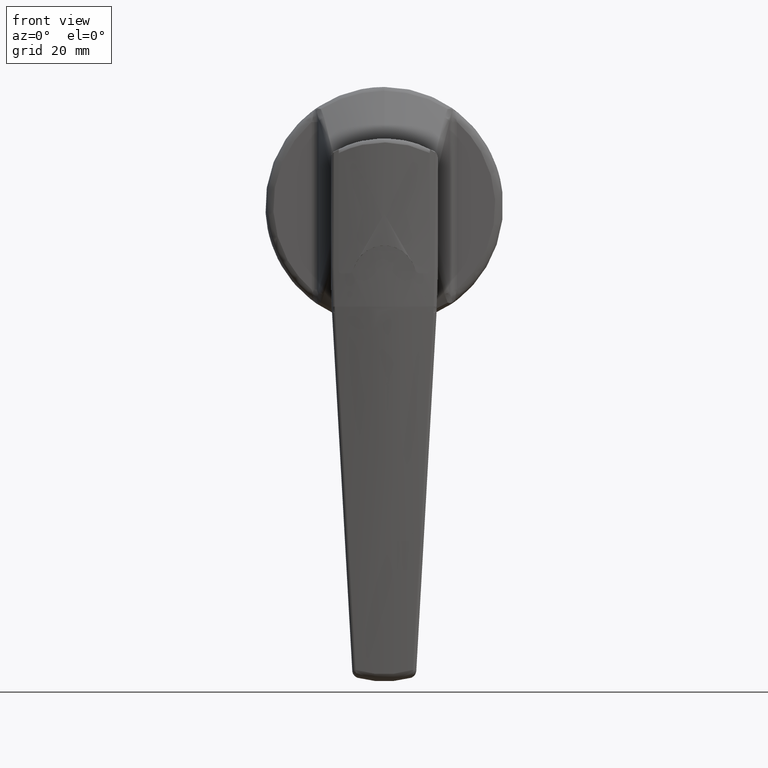
[diagram: clean part render]
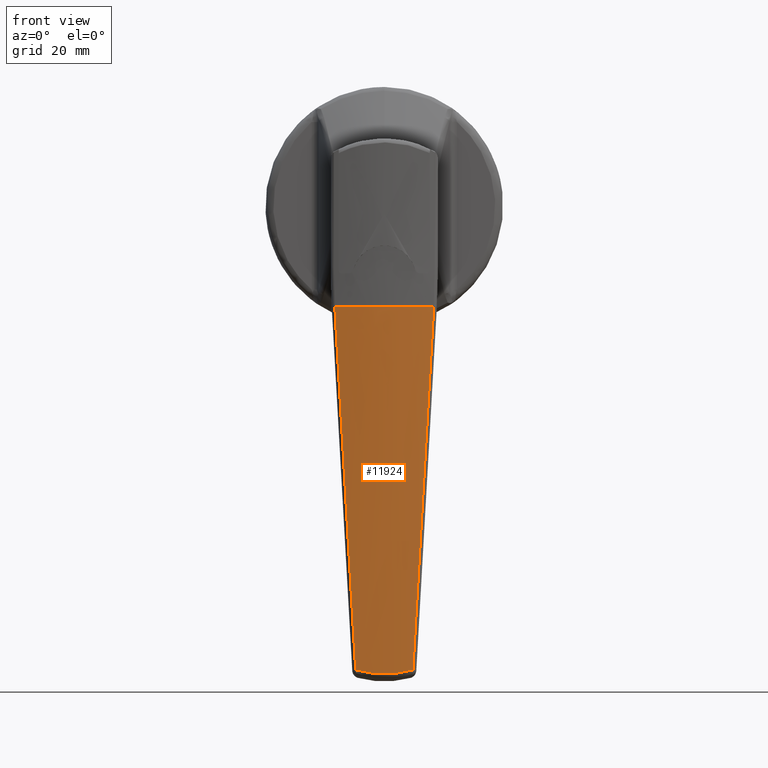
[diagram: same view with one face highlighted and labeled with its STEP entity id]
A machine part, front view. The second image highlights one B-rep face of the part: STEP entity #11924.
In plain terms, the highlighted face is a freeform B-spline surface patch.
Its self-contained STEP definition (entity closure, byte-faithful):
#6891=CARTESIAN_POINT('',(-39.909857933490898,7.213790736045410,-117.084794618973010));
#6892=VERTEX_POINT('',#6891);
#6893=CARTESIAN_POINT('',(-39.909857933490848,-7.213790736045429,-117.084794618973210));
#6894=VERTEX_POINT('',#6893);
#6895=CARTESIAN_POINT('',(-39.909857933490898,7.213790736045410,-117.084794618973010));
#6896=CARTESIAN_POINT('',(-39.965843515855482,6.627496043275496,-117.265314138344390));
#6897=CARTESIAN_POINT('',(-40.015422400020782,6.037432898611465,-117.422799866397600));
#6898=CARTESIAN_POINT('',(-40.101143519574478,4.849919290424683,-117.692897461019400));
#6899=CARTESIAN_POINT('',(-40.173429968805053,3.655017708117561,-117.918116204373310));
#6900=CARTESIAN_POINT('',(-40.217692363016852,2.445391861550925,-118.054288793521200));
#6901=CARTESIAN_POINT('',(-40.247386397903689,1.228310382515253,-118.145493331188600));
#6902=CARTESIAN_POINT('',(-40.254949478572968,0.616020772614438,-118.168614020875400));
#6903=CARTESIAN_POINT('',(-40.254948446701739,-0.616146847933066,-118.168610861538800));
#6904=CARTESIAN_POINT('',(-40.247384865291657,-1.228396495509741,-118.145488634921800));
#6905=CARTESIAN_POINT('',(-40.217690462913602,-2.445446443959838,-118.054282946281700));
#6906=CARTESIAN_POINT('',(-40.173427575749479,-3.655046255342052,-117.918111156287590));
#6907=CARTESIAN_POINT('',(-40.101142635036943,-4.849932405872104,-117.692894685629700));
#6908=CARTESIAN_POINT('',(-40.015422139097353,-6.037435651476795,-117.422799032568610));
#6909=CARTESIAN_POINT('',(-39.965843504135862,-6.627496166005619,-117.265314100555900));
#6910=CARTESIAN_POINT('',(-39.909857933490848,-7.213790736045453,-117.084794618973010));
#6911=B_SPLINE_CURVE_WITH_KNOTS('',3,(#6895,#6896,#6897,#6898,#6899,#6900,#6901,#6902,#6903,#6904,#6905,#6906,#6907,#6908,#6909,#6910),.UNSPECIFIED.,.F.,.U.,(4,2,1,2,2,2,1,2,4),(0.0,0.125000000000000,0.250000000000000,0.375000000000000,0.500000000000000,0.625000000000000,0.750000000000000,0.875000000000000,1.0),.UNSPECIFIED.);
#6912=EDGE_CURVE('',#6892,#6894,#6911,.T.);
#7845=CARTESIAN_POINT('',(-46.785711378948093,-12.473112755895841,-25.431464014060850));
#7846=VERTEX_POINT('',#7845);
#7877=CARTESIAN_POINT('',(-46.785711378948093,12.473112755895841,-25.431464014060751));
#7878=VERTEX_POINT('',#7877);
#7892=CARTESIAN_POINT('',(-46.785711378948093,-12.473112755895841,-25.431464014060850));
#7893=CARTESIAN_POINT('',(-49.436443152901298,4.163336E-014,-25.545265562781950));
#7894=CARTESIAN_POINT('',(-46.785711378948093,12.473112755895841,-25.431464014060751));
#7902=(BOUNDED_CURVE()B_SPLINE_CURVE(2,(#7892,#7893,#7894),.UNSPECIFIED.,.F.,.U.)CURVE()GEOMETRIC_REPRESENTATION_ITEM()QUASI_UNIFORM_CURVE()RATIONAL_B_SPLINE_CURVE((1.0,0.978153228478527,1.0))REPRESENTATION_ITEM(''));
#7903=EDGE_CURVE('',#7846,#7878,#7902,.T.);
#8125=CARTESIAN_POINT('',(-46.671376794683603,12.389688932985900,-26.992386918501399));
#8126=VERTEX_POINT('',#8125);
#8140=CARTESIAN_POINT('',(-46.785711378948093,12.473112755895841,-25.431464014060751));
#8141=CARTESIAN_POINT('',(-46.747170335792632,12.447384159813049,-25.951851318711050));
#8142=CARTESIAN_POINT('',(-46.709061837354817,12.419576423002461,-26.472159186351970));
#8143=CARTESIAN_POINT('',(-46.671376794683603,12.389688932985900,-26.992386918501399));
#8144=QUASI_UNIFORM_CURVE('',3,(#8140,#8141,#8142,#8143),.UNSPECIFIED.,.F.,.U.);
#8145=EDGE_CURVE('',#7878,#8126,#8144,.T.);
#8178=CARTESIAN_POINT('',(-46.671376794683603,-12.389688932985900,-26.992386918501602));
#8179=VERTEX_POINT('',#8178);
#8203=CARTESIAN_POINT('',(-46.671376794683603,-12.389688932985880,-26.992386918501602));
#8204=CARTESIAN_POINT('',(-46.709061837354817,-12.419576423002439,-26.472159186352140));
#8205=CARTESIAN_POINT('',(-46.747170335792617,-12.447384159813030,-25.951851318711189));
#8206=CARTESIAN_POINT('',(-46.785711378948093,-12.473112755895819,-25.431464014060850));
#8207=QUASI_UNIFORM_CURVE('',3,(#8203,#8204,#8205,#8206),.UNSPECIFIED.,.F.,.U.);
#8208=EDGE_CURVE('',#8179,#7846,#8207,.T.);
#8410=CARTESIAN_POINT('',(-46.671376794683603,12.389688932985900,-26.992386918501399));
#8411=CARTESIAN_POINT('',(-43.431909587914078,9.820511961474951,-71.712004010442200));
#8412=CARTESIAN_POINT('',(-39.909857933490898,7.213790736045410,-117.084794618973010));
#8420=(BOUNDED_CURVE()B_SPLINE_CURVE(2,(#8410,#8411,#8412),.UNSPECIFIED.,.F.,.U.)CURVE()GEOMETRIC_REPRESENTATION_ITEM()QUASI_UNIFORM_CURVE()RATIONAL_B_SPLINE_CURVE((1.0,0.999043781706573,1.0))REPRESENTATION_ITEM(''));
#8421=EDGE_CURVE('',#8126,#6892,#8420,.T.);
#8475=CARTESIAN_POINT('',(-39.909857933490827,-7.213790736045418,-117.084794618973310));
#8476=CARTESIAN_POINT('',(-43.431909587914241,-9.820511961475102,-71.712004010439870));
#8477=CARTESIAN_POINT('',(-46.671376794683603,-12.389688932985900,-26.992386918501602));
#8485=(BOUNDED_CURVE()B_SPLINE_CURVE(2,(#8475,#8476,#8477),.UNSPECIFIED.,.F.,.U.)CURVE()GEOMETRIC_REPRESENTATION_ITEM()QUASI_UNIFORM_CURVE()RATIONAL_B_SPLINE_CURVE((1.0,0.999043781706486,1.0))REPRESENTATION_ITEM(''));
#8486=EDGE_CURVE('',#6894,#8179,#8485,.T.);
#11902=CARTESIAN_POINT('',(-46.715993278810821,13.687617565856964,-23.037332219717879));
#11903=CARTESIAN_POINT('',(-38.477526869705727,13.687617565856964,-120.410177636956530));
#11904=CARTESIAN_POINT('',(-49.911704302739508,-0.000204496160791,-23.307713123254477));
#11905=CARTESIAN_POINT('',(-41.673237893634422,-0.000204496160792,-120.680558540493250));
#11906=CARTESIAN_POINT('',(-46.715902759079732,-13.688005272834207,-23.037324561075870));
#11907=CARTESIAN_POINT('',(-38.477436349974646,-13.688005272834207,-120.410169978314530));
#11915=(BOUNDED_SURFACE()B_SPLINE_SURFACE(1,2,((#11902,#11904,#11906),(#11903,#11905,#11907)),.UNSPECIFIED.,.F.,.F.,.U.)B_SPLINE_SURFACE_WITH_KNOTS((2,2),(3,3),(0.0,97.720741674546346),(0.0,27.741383964731870),.UNSPECIFIED.)GEOMETRIC_REPRESENTATION_ITEM()RATIONAL_B_SPLINE_SURFACE(((0.997388975650527,0.970926280731550,0.997055853653611),(0.997388975650527,0.970926280731550,0.997055853653611)))REPRESENTATION_ITEM('')SURFACE());
#11916=ORIENTED_EDGE('',*,*,#8421,.T.);
#11917=ORIENTED_EDGE('',*,*,#6912,.T.);
#11918=ORIENTED_EDGE('',*,*,#8486,.T.);
#11919=ORIENTED_EDGE('',*,*,#8208,.T.);
#11920=ORIENTED_EDGE('',*,*,#7903,.T.);
#11921=ORIENTED_EDGE('',*,*,#8145,.T.);
#11922=EDGE_LOOP('',(#11916,#11917,#11918,#11919,#11920,#11921));
#11923=FACE_OUTER_BOUND('',#11922,.T.);
#11924=ADVANCED_FACE('',(#11923),#11915,.T.);